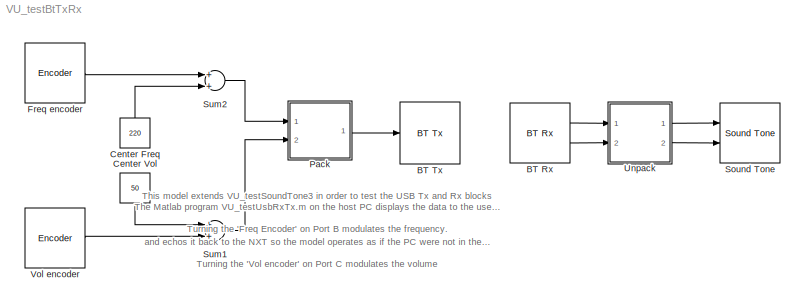
MODEL VU_testBtTxRx
KIND model
BLOCK [Reference] BT Rx  REF=lego_nxt_lib/BT Rx  (lib defined in mdl_3d9a4c0387f8)
  Ports = [0, 2]
  SID = 67
  SourceBlock = lego_nxt_lib/BT Rx
  SourceType = Bluetooth Rx Interface
  init_y0 = zeros(32,1,'uint8')
  ip = 0
  mos = Slave
  st = 0.1
BLOCK [Reference] BT Tx  REF=lego_nxt_lib/BT Tx  (lib defined in mdl_3d9a4c0387f8)
  Ports = [1]
  SID = 64
  SourceBlock = lego_nxt_lib/BT Tx
  SourceType = Bluetooth Tx Interface
  ip = 0
  mos = Slave
BLOCK [Constant] Center Freq
  SID = 44
  Value = 220
BLOCK [Constant] Center Vol
  SID = 48
  Value = 50
BLOCK [Reference] Freq encoder  REF=lego_nxt_lib/Encoder  (lib defined in mdl_3d9a4c0387f8)
  Ports = [0, 1]
  SID = 42
  SourceBlock = lego_nxt_lib/Encoder
  SourceType = Encoder
  port = Port B
  st = 0.1
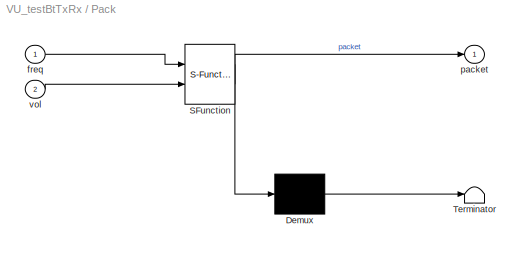
BLOCK [SubSystem] Pack
  ErrorFcn = Stateflow.Translate.translate
  PermitHierarchicalResolution = ExplicitOnly
  Ports = [2, 1]
  RequestExecContextInheritance = off
  SFBlockType = MATLAB Function
  SID = 59
  TreatAsAtomicUnit = on
BLOCK [Demux] Pack/ Demux 
  Outputs = 1
  Ports = [1, 1]
  SID = 59::20
BLOCK [S-Function] Pack/ SFunction 
  EnableBusSupport = off
  FunctionName = sf_sfun
  PortCounts = [2 2]
  Ports = [2, 2]
  SFcnIsStateOwnerBlock = off
  SFunctionDeploymentMode = off
  SID = 59::19
  Tag = Stateflow S-Function 2
BLOCK [Terminator] Pack/ Terminator 
  SID = 59::21
BLOCK [Inport] Pack/freq
  IconDisplay = Port number
  SID = 59::1
BLOCK [Outport] Pack/packet
  IconDisplay = Port number
  SID = 59::5
BLOCK [Inport] Pack/vol
  IconDisplay = Port number
  Port = 2
  SID = 59::18
BLOCK [Reference] Sound Tone  REF=lego_nxt_lib/Sound Tone  (lib defined in mdl_3d9a4c0387f8)
  FunctionWithSeparateData = off
  Ports = [2]
  RTWMemSecDataConstants = Inherit from model
  RTWMemSecDataInternal = Inherit from model
  RTWMemSecDataParameters = Inherit from model
  RTWMemSecFuncExecute = Inherit from model
  RTWMemSecFuncInitTerm = Inherit from model
  SID = 36
  ShowPortLabels = FromPortIcon
  SourceBlock = lego_nxt_lib/Sound Tone
  SourceType = Sound Tone
  SystemSampleTime = -1
  freq = 220
  freqsrc = External
  vol = 70
  volsrc = External
BLOCK [Sum] Sum1
  InputSameDT = off
  OutDataTypeStr = uint8
  Ports = [2, 1]
  SID = 47
  SaturateOnIntegerOverflow = off
BLOCK [Sum] Sum2
  InputSameDT = off
  OutDataTypeStr = uint32
  Ports = [2, 1]
  SID = 45
  SaturateOnIntegerOverflow = off
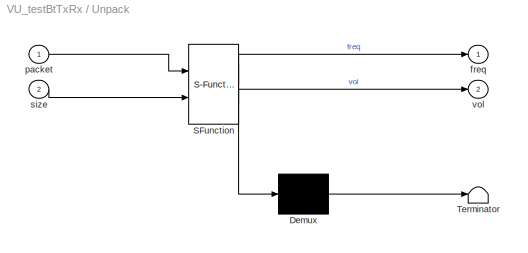
BLOCK [SubSystem] Unpack
  ErrorFcn = Stateflow.Translate.translate
  PermitHierarchicalResolution = ExplicitOnly
  Ports = [2, 2]
  RequestExecContextInheritance = off
  SFBlockType = MATLAB Function
  SID = 53
  TreatAsAtomicUnit = on
BLOCK [Demux] Unpack/ Demux 
  Outputs = 1
  Ports = [1, 1]
  SID = 53::21
BLOCK [S-Function] Unpack/ SFunction 
  EnableBusSupport = off
  FunctionName = sf_sfun
  PortCounts = [2 3]
  Ports = [2, 3]
  SFcnIsStateOwnerBlock = off
  SFunctionDeploymentMode = off
  SID = 53::20
  Tag = Stateflow S-Function 3
BLOCK [Terminator] Unpack/ Terminator 
  SID = 53::22
BLOCK [Outport] Unpack/freq
  IconDisplay = Port number
  SID = 53::5
BLOCK [Inport] Unpack/packet
  IconDisplay = Port number
  SID = 53::1
BLOCK [Inport] Unpack/size
  IconDisplay = Port number
  Port = 2
  SID = 53::18
BLOCK [Outport] Unpack/vol
  IconDisplay = Port number
  Port = 2
  SID = 53::19
BLOCK [Reference] Vol encoder  REF=lego_nxt_lib/Encoder  (lib defined in mdl_3d9a4c0387f8)
  Ports = [0, 1]
  SID = 43
  SourceBlock = lego_nxt_lib/Encoder
  SourceType = Encoder
  port = Port C
  st = 0.1
ANNOTATION (root): This model extends VU_testSoundTone3 in order to test the USB Tx and Rx blocks\nThe Matlab program VU_testUsbRxTx.m on the host PC displays the data to the user \nand echos it back to the NXT so the model operates as if the PC were not in the loop. \nTurning the 'Freq Encoder' on Port B modulates the frequency. \nTurning the 'Vol encoder' on Port C modulates the volume\n\nImportant: Start the mode...<+55ch>
LINE BT Rx:1 -> Unpack:1
LINE BT Rx:2 -> Unpack:2
LINE Center Freq:1 -> Sum2:2
LINE Center Vol:1 -> Sum1:1
LINE Freq encoder:1 -> Sum2:1
LINE Pack/ Demux :1 -> Pack/ Terminator :1
LINE Pack/ SFunction :1 -> Pack/ Demux :1
LINE Pack/ SFunction :2 -> Pack/packet:1
LINE Pack/freq:1 -> Pack/ SFunction :1
LINE Pack/vol:1 -> Pack/ SFunction :2
LINE Pack:1 -> BT Tx:1
LINE Sum1:1 -> Pack:2
LINE Sum2:1 -> Pack:1
LINE Unpack/ Demux :1 -> Unpack/ Terminator :1
LINE Unpack/ SFunction :1 -> Unpack/ Demux :1
LINE Unpack/ SFunction :2 -> Unpack/freq:1
LINE Unpack/ SFunction :3 -> Unpack/vol:1
LINE Unpack/packet:1 -> Unpack/ SFunction :1
LINE Unpack/size:1 -> Unpack/ SFunction :2
LINE Unpack:1 -> Sound Tone:1
LINE Unpack:2 -> Sound Tone:2
LINE Vol encoder:1 -> Sum1:2
CHART Pack states=1 transitions=1
  STATE_LABEL 'eML_blk_kernel()'
CHART Unpack states=1 transitions=1
  STATE_LABEL 'eML_blk_kernel()'
